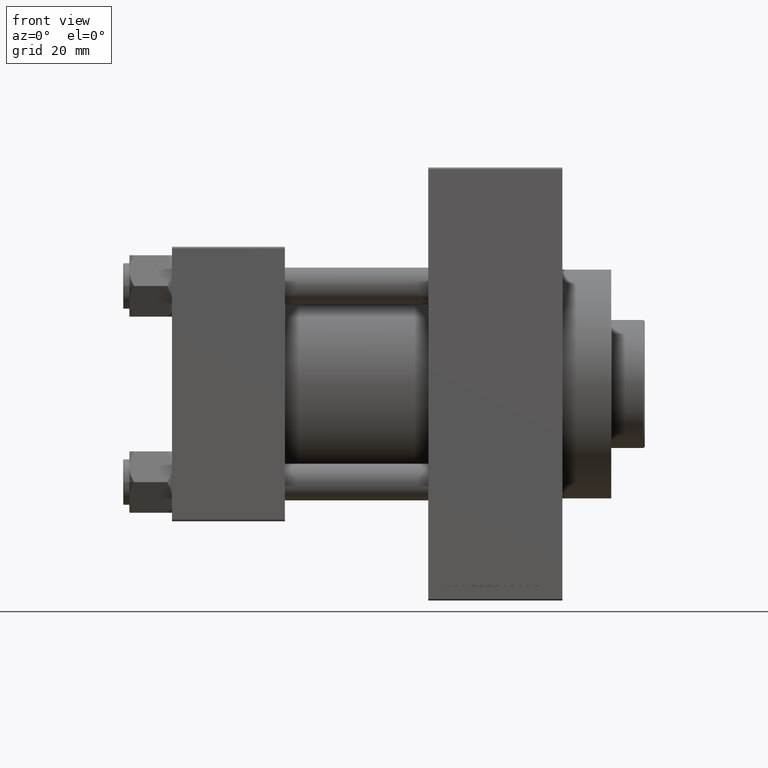
[diagram: clean part render]
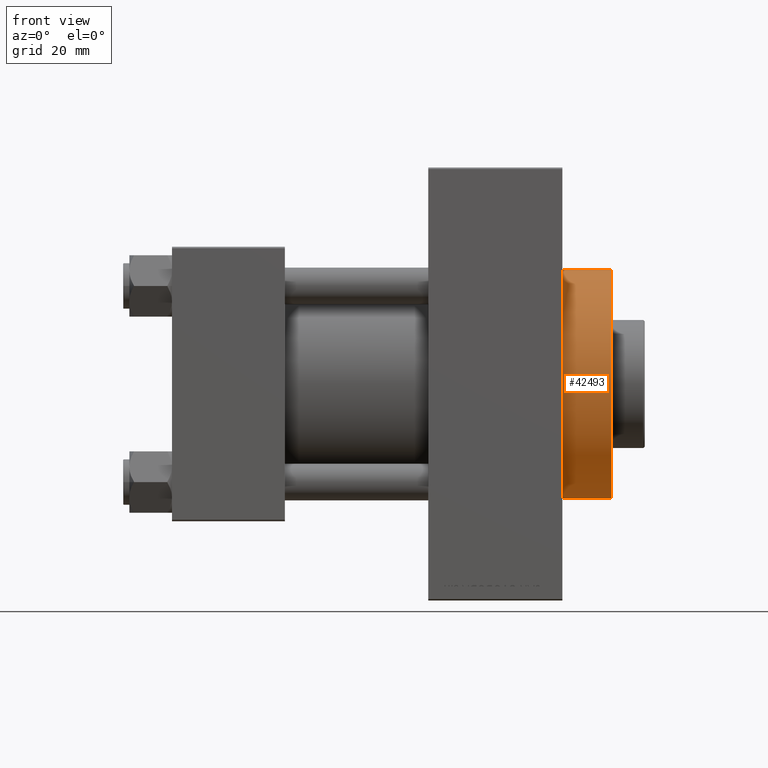
[diagram: same view with one face highlighted and labeled with its STEP entity id]
A machine part, front view. The second image highlights one B-rep face of the part: STEP entity #42493.
In plain terms, the highlighted cylindrical surface (partial cylindrical patch) has radius 37.5 mm, axis along (-1, -0, -0).
Its self-contained STEP definition (entity closure, byte-faithful):
#895 = DIRECTION ( 'NONE',  ( 0.000000000000000000, 0.000000000000000000, 1.000000000000000000 ) ) ;
#2121 = VERTEX_POINT ( 'NONE', #26276 ) ;
#4358 = AXIS2_PLACEMENT_3D ( 'NONE', #42619, #24238, #45969 ) ;
#5166 = DIRECTION ( 'NONE',  ( -1.000000000000000000, -0.000000000000000000, -0.000000000000000000 ) ) ;
#6543 = VECTOR ( 'NONE', #40223, 1000.000000000000000 ) ;
#10021 = EDGE_CURVE ( 'NONE', #2121, #44613, #43801, .T. ) ;
#10697 = CARTESIAN_POINT ( 'NONE',  ( 144.0000000000000284, 0.000000000000000000, 0.000000000000000000 ) ) ;
#11560 = AXIS2_PLACEMENT_3D ( 'NONE', #23305, #5166, #895 ) ;
#13786 = CARTESIAN_POINT ( 'NONE',  ( 144.0000000000000284, 0.000000000000000000, 37.50000000000000711 ) ) ;
#14853 = CARTESIAN_POINT ( 'NONE',  ( 128.0000000000000000, 0.000000000000000000, 37.50000000000000711 ) ) ;
#15197 = FACE_OUTER_BOUND ( 'NONE', #36995, .T. ) ;
#16760 = ORIENTED_EDGE ( 'NONE', *, *, #23524, .T. ) ;
#18998 = EDGE_CURVE ( 'NONE', #38785, #28463, #34818, .T. ) ;
#23305 = CARTESIAN_POINT ( 'NONE',  ( 144.0000000000000284, 0.000000000000000000, 0.000000000000000000 ) ) ;
#23524 = EDGE_CURVE ( 'NONE', #28463, #44613, #29499, .T. ) ;
#24238 = DIRECTION ( 'NONE',  ( 1.000000000000000000, 0.000000000000000000, 0.000000000000000000 ) ) ;
#25636 = CARTESIAN_POINT ( 'NONE',  ( 144.0000000000000284, 4.592425496802575156E-15, -37.50000000000000711 ) ) ;
#26174 = CIRCLE ( 'NONE', #26930, 37.50000000000000711 ) ;
#26276 = CARTESIAN_POINT ( 'NONE',  ( 144.0000000000000284, 4.592425496802575156E-15, -37.50000000000000711 ) ) ;
#26930 = AXIS2_PLACEMENT_3D ( 'NONE', #10697, #40552, #36957 ) ;
#28463 = VERTEX_POINT ( 'NONE', #14853 ) ;
#29499 = CIRCLE ( 'NONE', #4358, 37.50000000000000711 ) ;
#30225 = ORIENTED_EDGE ( 'NONE', *, *, #10021, .F. ) ;
#33588 = CYLINDRICAL_SURFACE ( 'NONE', #11560, 37.50000000000000711 ) ;
#34199 = CARTESIAN_POINT ( 'NONE',  ( 128.0000000000000000, 4.592425496802575156E-15, -37.50000000000000711 ) ) ;
#34818 = LINE ( 'NONE', #13786, #46507 ) ;
#36957 = DIRECTION ( 'NONE',  ( 0.000000000000000000, 0.000000000000000000, -1.000000000000000000 ) ) ;
#36995 = EDGE_LOOP ( 'NONE', ( #30225, #38864, #43945, #16760 ) ) ;
#38785 = VERTEX_POINT ( 'NONE', #39347 ) ;
#38864 = ORIENTED_EDGE ( 'NONE', *, *, #46150, .F. ) ;
#39347 = CARTESIAN_POINT ( 'NONE',  ( 144.0000000000000284, 0.000000000000000000, 37.50000000000000711 ) ) ;
#40223 = DIRECTION ( 'NONE',  ( -1.000000000000000000, -0.000000000000000000, -0.000000000000000000 ) ) ;
#40552 = DIRECTION ( 'NONE',  ( 1.000000000000000000, 0.000000000000000000, 0.000000000000000000 ) ) ;
#42493 = ADVANCED_FACE ( 'NONE', ( #15197 ), #33588, .T. ) ;
#42619 = CARTESIAN_POINT ( 'NONE',  ( 128.0000000000000000, 0.000000000000000000, 0.000000000000000000 ) ) ;
#42692 = DIRECTION ( 'NONE',  ( -1.000000000000000000, -0.000000000000000000, -0.000000000000000000 ) ) ;
#43801 = LINE ( 'NONE', #25636, #6543 ) ;
#43945 = ORIENTED_EDGE ( 'NONE', *, *, #18998, .T. ) ;
#44613 = VERTEX_POINT ( 'NONE', #34199 ) ;
#45969 = DIRECTION ( 'NONE',  ( 0.000000000000000000, 0.000000000000000000, -1.000000000000000000 ) ) ;
#46150 = EDGE_CURVE ( 'NONE', #38785, #2121, #26174, .T. ) ;
#46507 = VECTOR ( 'NONE', #42692, 1000.000000000000000 ) ;